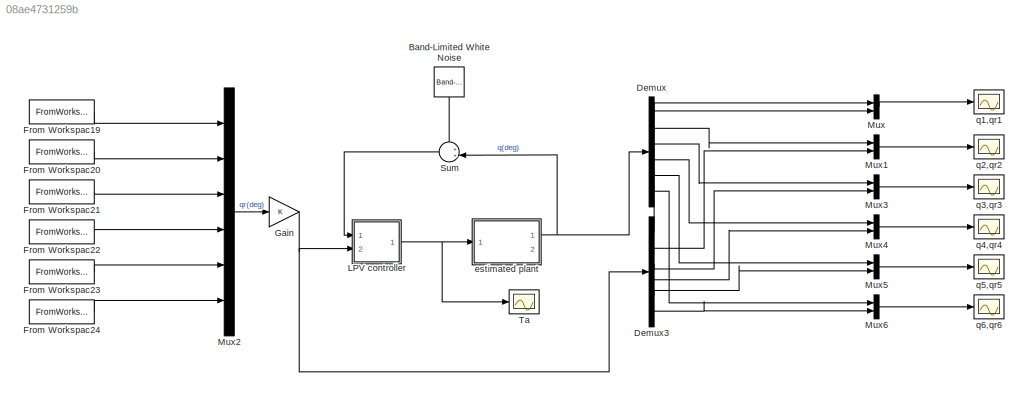
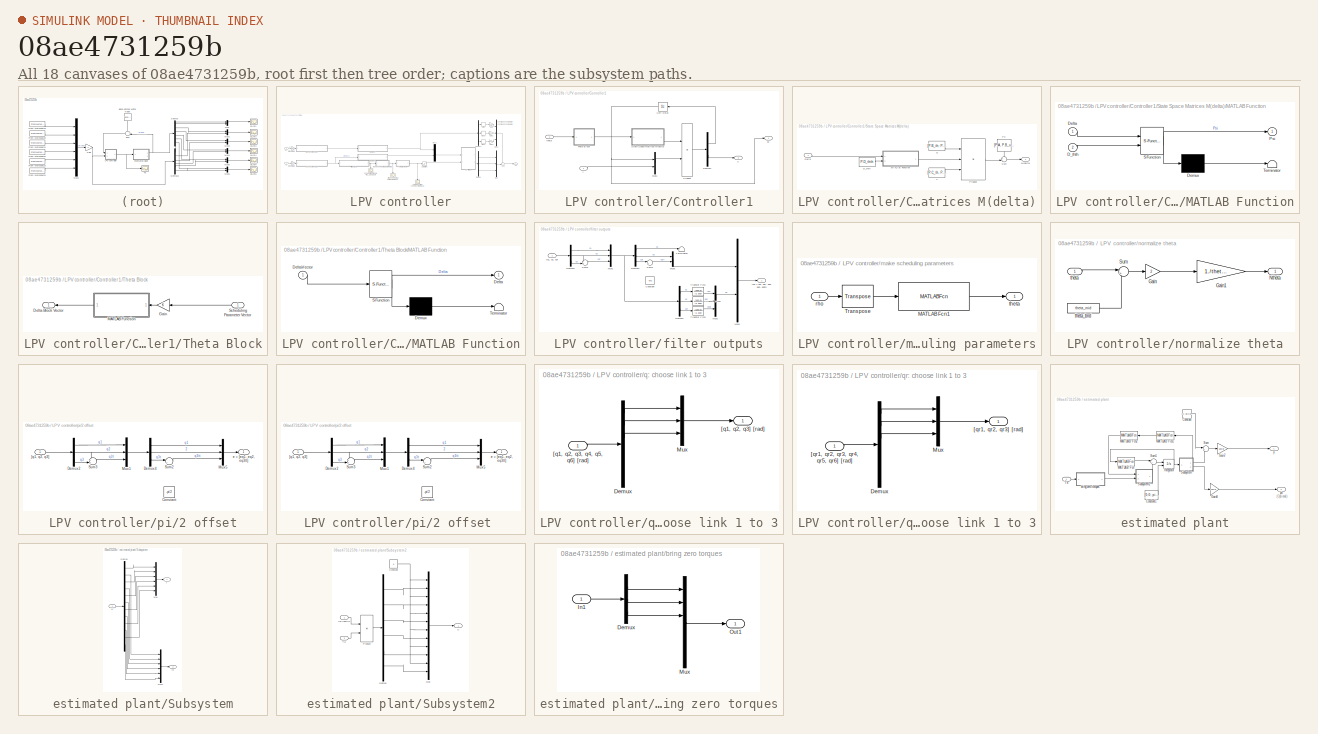
[diagram: thumbnail index - all 18 canvases of the model, root first then tree order]
MODEL slx_08ae4731259b
KIND model
CONFIG StopFcn = q1rms = rms(q1qr1.signals.values(:, 1) - q1qr1.signals.values(:, 2))\nq2rms = rms(q2qr2.signals.values(:, 1) - q2qr2.signals.values(:, 2))\nq3rms = rms(q3qr3.signals.values(:, 1) - q3qr3.signals.values(:, 2))
BLOCK [Reference] Band-Limited White Noise  REF=simulink/Sources/Band-Limited
White Noise
  Cov = [0.0000000001]
  Ports = [0, 1]
  SourceBlock = simulink/Sources/Band-Limited\nWhite Noise
  SourceType = Band-Limited White Noise.
  Ts = 0.001
  VectorParams1D = on
  seed = [23341]
BLOCK [Demux] Demux
  DisplayOption = bar
  Outputs = 6
  Ports = [1, 6]
BLOCK [Demux] Demux3
  DisplayOption = bar
  Outputs = 6
  Ports = [1, 6]
BLOCK [FromWorkspace] From Workspac19
  SampleTime = 0
  VariableName = [time qr(:,1)]
BLOCK [FromWorkspace] From Workspac20
  SampleTime = 0
  VariableName = [time qr(:,2)]
BLOCK [FromWorkspace] From Workspac21
  SampleTime = 0
  VariableName = [time qr(:,3)]
BLOCK [FromWorkspace] From Workspac22
  SampleTime = 0
  VariableName = [time qr(:,4)]
BLOCK [FromWorkspace] From Workspac23
  SampleTime = 0
  VariableName = [time qr(:,5)]
BLOCK [FromWorkspace] From Workspac24
  SampleTime = 0
  VariableName = [time qr(:,6)]
BLOCK [Gain] Gain
  OutDataTypeStr = Inherit: Inherit via internal rule
  ParamDataTypeStr = Inherit: Inherit via internal rule
  SaturateOnIntegerOverflow = off
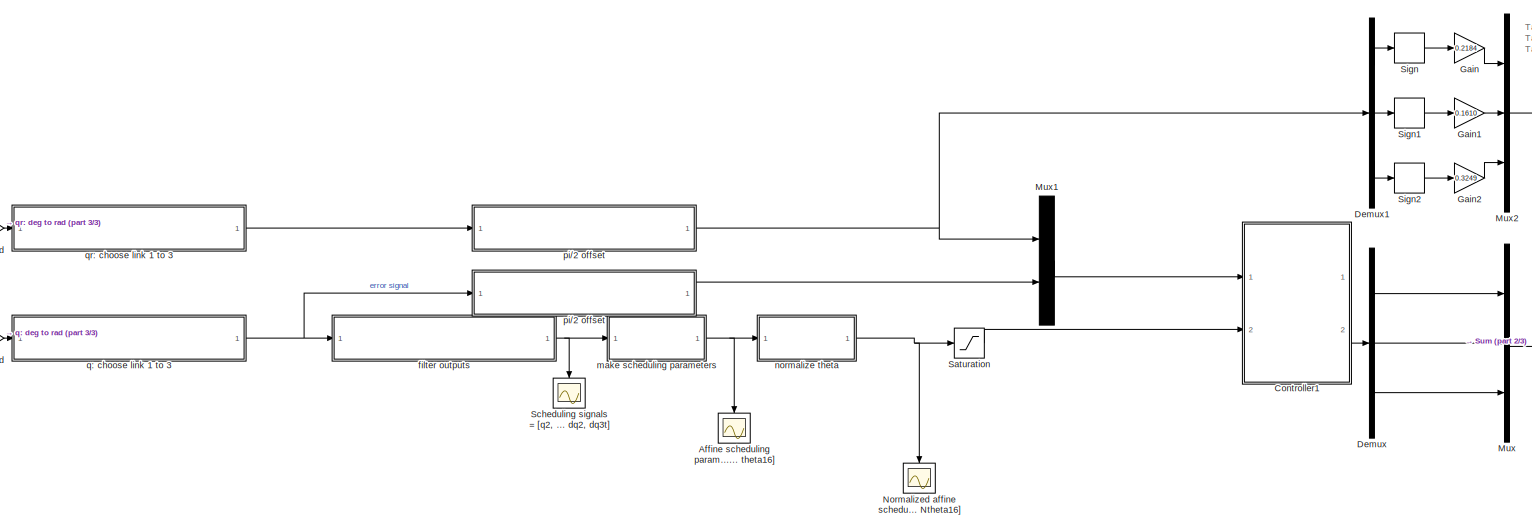
[diagram: LPV controller - part 1/3, most of the canvas]
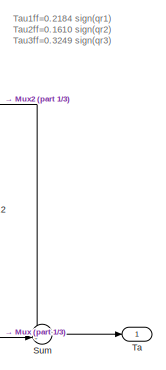
[diagram: LPV controller - part 2/3, middle right region]
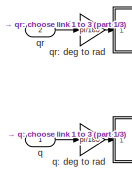
[diagram: LPV controller - part 3/3, middle left region]
BLOCK [SubSystem] LPV controller
  FunctionWithSeparateData = off
  MaskHideContents = off
  MinAlgLoopOccurrences = off
  Opaque = off
  Ports = [2, 1]
  PropExecContextOutsideSubsystem = off
  RTWSystemCode = Auto
  RequestExecContextInheritance = off
BLOCK [Scope] LPV controller/Affine scheduling parameters theta = [theta1 ... theta16]
  DataFormat = StructureWithTime
  Floating = off
  LegendLocations = 0.76558     0.55816     0.20472      0.3857
  LimitDataPoints = off
  NumInputPorts = 1
  Ports = [1]
  SampleTime = 0
  SaveName = ScopeData8
  ShowLegends = on
BLOCK [SubSystem] LPV controller/Controller1
  FunctionWithSeparateData = off
  MaskHideContents = off
  MinAlgLoopOccurrences = off
  Opaque = off
  Ports = [2, 2]
  PropExecContextOutsideSubsystem = off
  RTWSystemCode = Auto
  RequestExecContextInheritance = off
BLOCK [Demux] LPV controller/Controller1/Demux1
  DisplayOption = bar
  Outputs = [size(P.A, 1); size(P.C_y, 1)]
  Ports = [1, 2]
BLOCK [Mux] LPV controller/Controller1/Mux1
  DisplayOption = bar
  Inputs = 2
  Ports = [2, 1]
BLOCK [Product] LPV controller/Controller1/Product
  InputSameDT = off
  Multiplication = Matrix(*)
  OutDataTypeStr = Inherit: Inherit via internal rule
  Ports = [2, 1]
  SaturateOnIntegerOverflow = off
BLOCK [SubSystem] LPV controller/Controller1/State Space Matrices M(delta)
  FunctionWithSeparateData = off
  MaskHideContents = off
  MinAlgLoopOccurrences = off
  Opaque = off
  Ports = [1, 1]
  PropExecContextOutsideSubsystem = off
  RTWSystemCode = Auto
  RequestExecContextInheritance = off
BLOCK [Constant] LPV controller/Controller1/State Space Matrices M(delta)/D_thth
  Value = P.D_thth
BLOCK [Inport] LPV controller/Controller1/State Space Matrices M(delta)/Delta
  IconDisplay = Port number
BLOCK [Outport] LPV controller/Controller1/State Space Matrices M(delta)/M(delta)
  IconDisplay = Port number
BLOCK [SubSystem] LPV controller/Controller1/State Space Matrices M(delta)/MATLAB Function
  ErrorFcn = Stateflow.Translate.translate
  FunctionWithSeparateData = off
  MaskHideContents = off
  MinAlgLoopOccurrences = off
  Opaque = off
  PermitHierarchicalResolution = ExplicitOnly
  Ports = [2, 1]
  PropExecContextOutsideSubsystem = off
  RTWSystemCode = Auto
  RequestExecContextInheritance = off
  SFBlockType = MATLAB Function
  TreatAsAtomicUnit = on
BLOCK [Demux] LPV controller/Controller1/State Space Matrices M(delta)/MATLAB Function/ Demux 
  Outputs = 1
  Ports = [1, 1]
BLOCK [S-Function] LPV controller/Controller1/State Space Matrices M(delta)/MATLAB Function/ SFunction 
  EnableBusSupport = on
  FunctionName = sf_sfun
  PortCounts = [2 2]
  Ports = [2, 2]
  Tag = Stateflow S-Function Robot_model_LPV_2DOFcontrol_fullSchedulingOrder_3DOF 2
BLOCK [Terminator] LPV controller/Controller1/State Space Matrices M(delta)/MATLAB Function/ Terminator 
BLOCK [Inport] LPV controller/Controller1/State Space Matrices M(delta)/MATLAB Function/D_thth
  IconDisplay = Port number
  Port = 2
BLOCK [Inport] LPV controller/Controller1/State Space Matrices M(delta)/MATLAB Function/Delta
  IconDisplay = Port number
BLOCK [Outport] LPV controller/Controller1/State Space Matrices M(delta)/MATLAB Function/Psi
  IconDisplay = Port number
BLOCK [Constant] LPV controller/Controller1/State Space Matrices M(delta)/P0
  Value = [P.A, P.B_u; P.C_y, P.D_yu];
  VectorParams1D = off
BLOCK [Product] LPV controller/Controller1/State Space Matrices M(delta)/Product
  InputSameDT = off
  Inputs = 3
  Multiplication = Matrix(*)
  OutDataTypeStr = Inherit: Inherit via internal rule
  Ports = [3, 1]
  SaturateOnIntegerOverflow = off
BLOCK [Constant] LPV controller/Controller1/State Space Matrices M(delta)/Q
  Value = [P.B_th; P.D_yth]
BLOCK [Sum] LPV controller/Controller1/State Space Matrices M(delta)/Sum
  IconShape = round
  InputSameDT = off
  Inputs = ++|
  OutDataTypeStr = Inherit: Inherit via internal rule
  Ports = [2, 1]
  SaturateOnIntegerOverflow = off
BLOCK [Constant] LPV controller/Controller1/State Space Matrices M(delta)/V
  Value = [P.C_th, P.D_thu ]
  VectorParams1D = off
BLOCK [SubSystem] LPV controller/Controller1/Theta Block
  FunctionWithSeparateData = off
  MaskHideContents = off
  MinAlgLoopOccurrences = off
  Opaque = off
  Ports = [1, 1]
  PropExecContextOutsideSubsystem = off
  RTWSystemCode = Auto
  RequestExecContextInheritance = off
BLOCK [Outport] LPV controller/Controller1/Theta Block/Delta Block Vector
  IconDisplay = Port number
BLOCK [Gain] LPV controller/Controller1/Theta Block/Gain
  OutDataTypeStr = Inherit: Inherit via internal rule
  ParamDataTypeStr = Inherit: Inherit via internal rule
  SaturateOnIntegerOverflow = off
BLOCK [SubSystem] LPV controller/Controller1/Theta Block/MATLAB Function
  ErrorFcn = Stateflow.Translate.translate
  FunctionWithSeparateData = off
  MaskHideContents = off
  MinAlgLoopOccurrences = off
  Opaque = off
  PermitHierarchicalResolution = ExplicitOnly
  Ports = [1, 1]
  PropExecContextOutsideSubsystem = off
  RTWSystemCode = Auto
  RequestExecContextInheritance = off
  SFBlockType = MATLAB Function
  TreatAsAtomicUnit = on
BLOCK [Demux] LPV controller/Controller1/Theta Block/MATLAB Function/ Demux 
  Outputs = 1
  Ports = [1, 1]
BLOCK [S-Function] LPV controller/Controller1/Theta Block/MATLAB Function/ SFunction 
  EnableBusSupport = on
  FunctionName = sf_sfun
  PortCounts = [1 2]
  Ports = [1, 2]
  Tag = Stateflow S-Function Robot_model_LPV_2DOFcontrol_fullSchedulingOrder_3DOF 1
BLOCK [Terminator] LPV controller/Controller1/Theta Block/MATLAB Function/ Terminator 
BLOCK [Outport] LPV controller/Controller1/Theta Block/MATLAB Function/Delta
  IconDisplay = Port number
BLOCK [Inport] LPV controller/Controller1/Theta Block/MATLAB Function/DeltaVector
  IconDisplay = Port number
BLOCK [Inport] LPV controller/Controller1/Theta Block/Scheduling Parameter Vector
  IconDisplay = Port number
BLOCK [UnitDelay] LPV controller/Controller1/Unit Delay
  InputProcessing = Elements as channels (sample based)
  SampleTime = -1
BLOCK [Inport] LPV controller/Controller1/theta
  IconDisplay = Port number
  Port = 2
BLOCK [Outport] LPV controller/Controller1/u
  IconDisplay = Port number
  Port = 2
BLOCK [Outport] LPV controller/Controller1/xk
  IconDisplay = Port number
BLOCK [Inport] LPV controller/Controller1/y
  IconDisplay = Port number
BLOCK [Demux] LPV controller/Demux
  DisplayOption = bar
  Outputs = 3
  Ports = [1, 3]
BLOCK [Demux] LPV controller/Demux1
  DisplayOption = bar
  Outputs = 3
  Ports = [1, 3]
BLOCK [Gain] LPV controller/Gain
  Gain = 0.2184
  OutDataTypeStr = Inherit: Inherit via internal rule
  ParamDataTypeStr = Inherit: Inherit via internal rule
  SampleTime = 0.001
  SaturateOnIntegerOverflow = off
BLOCK [Gain] LPV controller/Gain1
  Gain = 0.1610
  OutDataTypeStr = Inherit: Inherit via internal rule
  ParamDataTypeStr = Inherit: Inherit via internal rule
  SampleTime = 0.001
  SaturateOnIntegerOverflow = off
BLOCK [Gain] LPV controller/Gain2
  Gain = 0.3249
  OutDataTypeStr = Inherit: Inherit via internal rule
  ParamDataTypeStr = Inherit: Inherit via internal rule
  SampleTime = 0.001
  SaturateOnIntegerOverflow = off
BLOCK [Mux] LPV controller/Mux
  DisplayOption = bar
  Inputs = 3
  Ports = [3, 1]
BLOCK [Mux] LPV controller/Mux1
  DisplayOption = bar
  Inputs = 2
  Ports = [2, 1]
BLOCK [Mux] LPV controller/Mux2
  DisplayOption = bar
  Inputs = 3
  Ports = [3, 1]
BLOCK [Scope] LPV controller/Normalized affine scheduling parameters Ntheta = [Ntheta1 ... Ntheta16]
  DataFormat = StructureWithTime
  Floating = off
  LimitDataPoints = off
  NumInputPorts = 1
  Ports = [1]
  SampleTime = 0
  SaveName = ScopeData9
  ShowLegends = off
  YMax = 1.25
  YMin = -1.75
BLOCK [Saturate] LPV controller/Saturation
  InputPortMap = u0
  LowerLimit = -1
  Ports = [1, 1]
  UpperLimit = 1
BLOCK [Scope] LPV controller/Scheduling signals = [q2, q3t, dq1, dq2, dq3t]
  DataFormat = StructureWithTime
  Floating = off
  LimitDataPoints = off
  NumInputPorts = 1
  Ports = [1]
  SampleTime = 0
  SaveName = ScopeData7
  ShowLegends = off
BLOCK [Signum] LPV controller/Sign
  SampleTime = 0.001
BLOCK [Signum] LPV controller/Sign1
  SampleTime = 0.001
BLOCK [Signum] LPV controller/Sign2
  SampleTime = 0.001
BLOCK [Sum] LPV controller/Sum
  IconShape = round
  InputSameDT = off
  Inputs = ++|
  OutDataTypeStr = Inherit: Inherit via internal rule
  Ports = [2, 1]
  SaturateOnIntegerOverflow = off
BLOCK [Outport] LPV controller/Ta
  IconDisplay = Port number
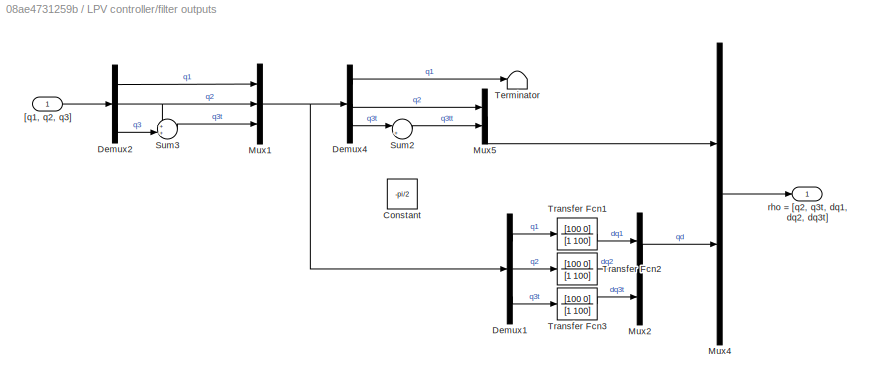
BLOCK [SubSystem] LPV controller/filter outputs
  FunctionWithSeparateData = off
  MaskHideContents = off
  MinAlgLoopOccurrences = off
  Opaque = off
  Ports = [1, 1]
  PropExecContextOutsideSubsystem = off
  RTWSystemCode = Auto
  RequestExecContextInheritance = off
BLOCK [Constant] LPV controller/filter outputs/Constant
  Value = -pi/2
BLOCK [Demux] LPV controller/filter outputs/Demux1
  DisplayOption = bar
  Outputs = 3
  Ports = [1, 3]
BLOCK [Demux] LPV controller/filter outputs/Demux2
  DisplayOption = bar
  Outputs = 3
  Ports = [1, 3]
BLOCK [Demux] LPV controller/filter outputs/Demux4
  DisplayOption = bar
  Outputs = 3
  Ports = [1, 3]
BLOCK [Mux] LPV controller/filter outputs/Mux1
  DisplayOption = bar
  Inputs = 3
  Ports = [3, 1]
BLOCK [Mux] LPV controller/filter outputs/Mux2
  DisplayOption = bar
  Inputs = 3
  Ports = [3, 1]
BLOCK [Mux] LPV controller/filter outputs/Mux4
  DisplayOption = bar
  Inputs = 2
  Ports = [2, 1]
BLOCK [Mux] LPV controller/filter outputs/Mux5
  DisplayOption = bar
  Inputs = 2
  Ports = [2, 1]
BLOCK [Sum] LPV controller/filter outputs/Sum2
  IconShape = round
  InputSameDT = off
  Inputs = |++
  OutDataTypeStr = Inherit: Inherit via internal rule
  Ports = [2, 1]
  SaturateOnIntegerOverflow = off
BLOCK [Sum] LPV controller/filter outputs/Sum3
  IconShape = round
  InputSameDT = off
  Inputs = ++|
  OutDataTypeStr = Inherit: Inherit via internal rule
  Ports = [2, 1]
  SaturateOnIntegerOverflow = off
BLOCK [Terminator] LPV controller/filter outputs/Terminator
BLOCK [TransferFcn] LPV controller/filter outputs/Transfer Fcn1
  Denominator = [1 100]
  Numerator = [100 0]
BLOCK [TransferFcn] LPV controller/filter outputs/Transfer Fcn2
  Denominator = [1 100]
  Numerator = [100 0]
BLOCK [TransferFcn] LPV controller/filter outputs/Transfer Fcn3
  Denominator = [1 100]
  Numerator = [100 0]
BLOCK [Inport] LPV controller/filter outputs/[q1, q2, q3]
  IconDisplay = Port number
BLOCK [Outport] LPV controller/filter outputs/rho = [q2, q3t, dq1, dq2, dq3t]
  IconDisplay = Port number
BLOCK [SubSystem] LPV controller/make scheduling parameters
  FunctionWithSeparateData = off
  MaskHideContents = off
  MinAlgLoopOccurrences = off
  Opaque = off
  Ports = [1, 1]
  PropExecContextOutsideSubsystem = off
  RTWSystemCode = Auto
  RequestExecContextInheritance = off
BLOCK [MATLABFcn] LPV controller/make scheduling parameters/MATLAB Fcn1
  MATLABFcn = robot3DOFaffineLPVparams(u)
  Output1D = off
  Ports = [1, 1]
BLOCK [Reference] LPV controller/make scheduling parameters/Transpose  REF=dspmtrx3/Transpose
  Hermitian = off
  Ports = [1, 1]
  SourceBlock = dspmtrx3/Transpose
  SourceType = Transpose
  overflowFlag = off
BLOCK [Inport] LPV controller/make scheduling parameters/rho
  IconDisplay = Port number
BLOCK [Outport] LPV controller/make scheduling parameters/theta
  IconDisplay = Port number
BLOCK [SubSystem] LPV controller/normalize theta
  FunctionWithSeparateData = off
  MaskHideContents = off
  MinAlgLoopOccurrences = off
  Opaque = off
  Ports = [1, 1]
  PropExecContextOutsideSubsystem = off
  RTWSystemCode = Auto
  RequestExecContextInheritance = off
BLOCK [Gain] LPV controller/normalize theta/Gain
  Gain = 2
  OutDataTypeStr = Inherit: Inherit via internal rule
  ParamDataTypeStr = Inherit: Inherit via internal rule
  SaturateOnIntegerOverflow = off
BLOCK [Gain] LPV controller/normalize theta/Gain1
  Gain = 1./theta_range
  OutDataTypeStr = Inherit: Inherit via internal rule
  ParamDataTypeStr = Inherit: Inherit via internal rule
  SaturateOnIntegerOverflow = off
BLOCK [Outport] LPV controller/normalize theta/Ntheta
  IconDisplay = Port number
BLOCK [Sum] LPV controller/normalize theta/Sum
  IconShape = round
  InputSameDT = off
  Inputs = |+-
  OutDataTypeStr = Inherit: Inherit via internal rule
  Ports = [2, 1]
  SaturateOnIntegerOverflow = off
BLOCK [Inport] LPV controller/normalize theta/theta
  IconDisplay = Port number
BLOCK [Constant] LPV controller/normalize theta/theta_bnd
  Value = theta_mid
BLOCK [SubSystem] LPV controller/pi//2 offset
  FunctionWithSeparateData = off
  MaskHideContents = off
  MinAlgLoopOccurrences = off
  Opaque = off
  Ports = [1, 1]
  PropExecContextOutsideSubsystem = off
  RTWSystemCode = Auto
  RequestExecContextInheritance = off
BLOCK [SubSystem] LPV controller/pi//2 offset 
  FunctionWithSeparateData = off
  MaskHideContents = off
  MinAlgLoopOccurrences = off
  Opaque = off
  Ports = [1, 1]
  PropExecContextOutsideSubsystem = off
  RTWSystemCode = Auto
  RequestExecContextInheritance = off
BLOCK [Constant] LPV controller/pi//2 offset /Constant
  Value = -pi/2
BLOCK [Demux] LPV controller/pi//2 offset /Demux2
  DisplayOption = bar
  Outputs = 3
  Ports = [1, 3]
BLOCK [Demux] LPV controller/pi//2 offset /Demux4
  DisplayOption = bar
  Outputs = 3
  Ports = [1, 3]
BLOCK [Mux] LPV controller/pi//2 offset /Mux1
  DisplayOption = bar
  Inputs = 3
  Ports = [3, 1]
BLOCK [Mux] LPV controller/pi//2 offset /Mux5
  DisplayOption = bar
  Inputs = 3
  Ports = [3, 1]
BLOCK [Sum] LPV controller/pi//2 offset /Sum2
  IconShape = round
  InputSameDT = off
  Inputs = |++
  OutDataTypeStr = Inherit: Inherit via internal rule
  Ports = [2, 1]
  SaturateOnIntegerOverflow = off
BLOCK [Sum] LPV controller/pi//2 offset /Sum3
  IconShape = round
  InputSameDT = off
  Inputs = ++|
  OutDataTypeStr = Inherit: Inherit via internal rule
  Ports = [2, 1]
  SaturateOnIntegerOverflow = off
BLOCK [Inport] LPV controller/pi//2 offset /[q1, q2, q3]
  IconDisplay = Port number
BLOCK [Outport] LPV controller/pi//2 offset /e = [eq1, eq2, eq3tt]
  IconDisplay = Port number
BLOCK [Constant] LPV controller/pi//2 offset/Constant
  Value = -pi/2
BLOCK [Demux] LPV controller/pi//2 offset/Demux2
  DisplayOption = bar
  Outputs = 3
  Ports = [1, 3]
BLOCK [Demux] LPV controller/pi//2 offset/Demux4
  DisplayOption = bar
  Outputs = 3
  Ports = [1, 3]
BLOCK [Mux] LPV controller/pi//2 offset/Mux1
  DisplayOption = bar
  Inputs = 3
  Ports = [3, 1]
BLOCK [Mux] LPV controller/pi//2 offset/Mux5
  DisplayOption = bar
  Inputs = 3
  Ports = [3, 1]
BLOCK [Sum] LPV controller/pi//2 offset/Sum2
  IconShape = round
  InputSameDT = off
  Inputs = |++
  OutDataTypeStr = Inherit: Inherit via internal rule
  Ports = [2, 1]
  SaturateOnIntegerOverflow = off
BLOCK [Sum] LPV controller/pi//2 offset/Sum3
  IconShape = round
  InputSameDT = off
  Inputs = ++|
  OutDataTypeStr = Inherit: Inherit via internal rule
  Ports = [2, 1]
  SaturateOnIntegerOverflow = off
BLOCK [Inport] LPV controller/pi//2 offset/[q1, q2, q3]
  IconDisplay = Port number
BLOCK [Outport] LPV controller/pi//2 offset/e = [eq1, eq2, eq3tt]
  IconDisplay = Port number
BLOCK [Inport] LPV controller/q
  IconDisplay = Port number
BLOCK [SubSystem] LPV controller/q: choose link 1 to 3
  FunctionWithSeparateData = off
  MaskHideContents = off
  MinAlgLoopOccurrences = off
  Opaque = off
  Ports = [1, 1]
  PropExecContextOutsideSubsystem = off
  RTWSystemCode = Auto
  RequestExecContextInheritance = off
BLOCK [Demux] LPV controller/q: choose link 1 to 3/Demux
  DisplayOption = bar
  Outputs = 6
  Ports = [1, 6]
BLOCK [Mux] LPV controller/q: choose link 1 to 3/Mux
  DisplayOption = bar
  Inputs = 3
  Ports = [3, 1]
BLOCK [Inport] LPV controller/q: choose link 1 to 3/[q1, q2, q3, q4, q5, q6] [rad]
  IconDisplay = Port number
BLOCK [Outport] LPV controller/q: choose link 1 to 3/[q1, q2, q3] [rad]
  IconDisplay = Port number
BLOCK [Gain] LPV controller/q: deg to rad
  Gain = pi/180
  OutDataTypeStr = Inherit: Inherit via internal rule
  ParamDataTypeStr = Inherit: Inherit via internal rule
  SaturateOnIntegerOverflow = off
BLOCK [Inport] LPV controller/qr
  IconDisplay = Port number
  Port = 2
BLOCK [SubSystem] LPV controller/qr: choose link 1 to 3
  FunctionWithSeparateData = off
  MaskHideContents = off
  MinAlgLoopOccurrences = off
  Opaque = off
  Ports = [1, 1]
  PropExecContextOutsideSubsystem = off
  RTWSystemCode = Auto
  RequestExecContextInheritance = off
BLOCK [Demux] LPV controller/qr: choose link 1 to 3/Demux
  DisplayOption = bar
  Outputs = 6
  Ports = [1, 6]
BLOCK [Mux] LPV controller/qr: choose link 1 to 3/Mux
  DisplayOption = bar
  Inputs = 3
  Ports = [3, 1]
BLOCK [Inport] LPV controller/qr: choose link 1 to 3/[qr1, qr2, qr3, qr4, qr5, qr6] [rad]
  IconDisplay = Port number
BLOCK [Outport] LPV controller/qr: choose link 1 to 3/[qr1, qr2, qr3] [rad]
  IconDisplay = Port number
BLOCK [Gain] LPV controller/qr: deg to rad
  Gain = pi/180
  OutDataTypeStr = Inherit: Inherit via internal rule
  ParamDataTypeStr = Inherit: Inherit via internal rule
  SaturateOnIntegerOverflow = off
BLOCK [Mux] Mux
  DisplayOption = bar
  Inputs = 2
  Ports = [2, 1]
BLOCK [Mux] Mux1
  DisplayOption = bar
  Inputs = 2
  Ports = [2, 1]
BLOCK [Mux] Mux2
  DisplayOption = bar
  Inputs = 6
  Ports = [6, 1]
BLOCK [Mux] Mux3
  DisplayOption = bar
  Inputs = 2
  Ports = [2, 1]
BLOCK [Mux] Mux4
  DisplayOption = bar
  Inputs = 2
  Ports = [2, 1]
BLOCK [Mux] Mux5
  DisplayOption = bar
  Inputs = 2
  Ports = [2, 1]
BLOCK [Mux] Mux6
  DisplayOption = bar
  Inputs = 2
  Ports = [2, 1]
BLOCK [Sum] Sum
  IconShape = round
  InputSameDT = off
  Inputs = ++|
  OutDataTypeStr = Inherit: Inherit via internal rule
  Ports = [2, 1]
  SaturateOnIntegerOverflow = off
BLOCK [Scope] Ta
  DataFormat = StructureWithTime
  Floating = off
  NumInputPorts = 1
  Ports = [1]
  SampleTime = 0
  SaveName = ScopeData6
  ShowLegends = off
  YMax = 2.25
  YMin = -1.5
BLOCK [SubSystem] estimated plant
  FunctionWithSeparateData = off
  MaskHideContents = off
  MinAlgLoopOccurrences = off
  Opaque = off
  Ports = [1, 2]
  PropExecContextOutsideSubsystem = off
  RTWSystemCode = Auto
  RequestExecContextInheritance = off
BLOCK [Constant] estimated plant/Constant
  Value = [0;-pi/2;pi;0;0;0]
BLOCK [Constant] estimated plant/Constant1
  AttributesFormatString = initial states, ready position
  Value = [0;0;    pi/2;0;    -pi;0;    0;0;    0;0;    0;0]
BLOCK [Gain] estimated plant/Gain7
  Gain = 180/pi
  OutDataTypeStr = Inherit: Inherit via internal rule
  ParamDataTypeStr = Inherit: Inherit via internal rule
  SaturateOnIntegerOverflow = off
BLOCK [Gain] estimated plant/Gain8
  Gain = 180/pi
  OutDataTypeStr = Inherit: Inherit via internal rule
  ParamDataTypeStr = Inherit: Inherit via internal rule
  SaturateOnIntegerOverflow = off
BLOCK [Integrator] estimated plant/Integrator
  InitialConditionSource = external
  Ports = [2, 1]
BLOCK [MATLABFcn] estimated plant/MATLAB Fcn
  MATLABFcn = Xdsim(u)
  Ports = [1, 1]
BLOCK [MATLABFcn] estimated plant/MATLAB Fcn1
  MATLABFcn = inert(u)
  Output1D = off
  Ports = [1, 1]
BLOCK [MATLABFcn] estimated plant/MATLAB Fcn2
  MATLABFcn = inv(u)
  Output1D = off
  Ports = [1, 1]
BLOCK [SubSystem] estimated plant/Subsystem
  FunctionWithSeparateData = off
  MaskHideContents = off
  MinAlgLoopOccurrences = off
  Opaque = off
  Ports = [1, 2]
  PropExecContextOutsideSubsystem = off
  RTWSystemCode = Auto
  RequestExecContextInheritance = off
BLOCK [Demux] estimated plant/Subsystem/Demux
  DisplayOption = bar
  Outputs = 12
  Ports = [1, 12]
BLOCK [Mux] estimated plant/Subsystem/Mux
  DisplayOption = bar
  Inputs = 6
  Ports = [6, 1]
BLOCK [Mux] estimated plant/Subsystem/Mux1
  DisplayOption = bar
  Inputs = 6
  Ports = [6, 1]
BLOCK [Inport] estimated plant/Subsystem/X
  IconDisplay = Port number
BLOCK [Outport] estimated plant/Subsystem/y
  IconDisplay = Port number
BLOCK [Outport] estimated plant/Subsystem/yd
  IconDisplay = Port number
  Port = 2
BLOCK [SubSystem] estimated plant/Subsystem2
  FunctionWithSeparateData = off
  MaskHideContents = off
  MinAlgLoopOccurrences = off
  Opaque = off
  Ports = [2, 1]
  PropExecContextOutsideSubsystem = off
  RTWSystemCode = Auto
  RequestExecContextInheritance = off
BLOCK [Constant] estimated plant/Subsystem2/Constant
  Value = 0
BLOCK [Demux] estimated plant/Subsystem2/Demux
  DisplayOption = bar
  Outputs = 6
  Ports = [1, 6]
BLOCK [Mux] estimated plant/Subsystem2/Mux
  DisplayOption = bar
  Inputs = 12
  Ports = [12, 1]
BLOCK [Product] estimated plant/Subsystem2/Product
  InputSameDT = off
  Multiplication = Matrix(*)
  OutDataTypeStr = Inherit: Inherit via internal rule
  Ports = [2, 1]
  SaturateOnIntegerOverflow = off
BLOCK [Inport] estimated plant/Subsystem2/Ta
  IconDisplay = Port number
  Port = 2
BLOCK [Outport] estimated plant/Subsystem2/U 
  IconDisplay = Port number
BLOCK [Inport] estimated plant/Subsystem2/inv inertia
  IconDisplay = Port number
BLOCK [Sum] estimated plant/Sum
  IconShape = round
  InputSameDT = off
  Inputs = |++
  OutDataTypeStr = Inherit: Inherit via internal rule
  Ports = [2, 1]
  SaturateOnIntegerOverflow = off
BLOCK [Sum] estimated plant/Sum1
  IconShape = round
  InputSameDT = off
  Inputs = |++
  OutDataTypeStr = Inherit: Inherit via internal rule
  Ports = [2, 1]
  SaturateOnIntegerOverflow = off
BLOCK [Inport] estimated plant/Ta
  IconDisplay = Port number
BLOCK [SubSystem] estimated plant/bring zero torques
  FunctionWithSeparateData = off
  MaskHideContents = off
  MinAlgLoopOccurrences = off
  Opaque = off
  Ports = [1, 1]
  PropExecContextOutsideSubsystem = off
  RTWSystemCode = Auto
  RequestExecContextInheritance = off
BLOCK [Demux] estimated plant/bring zero torques/Demux
  DisplayOption = bar
  Outputs = 3
  Ports = [1, 3]
BLOCK [Inport] estimated plant/bring zero torques/In1
  IconDisplay = Port number
BLOCK [Mux] estimated plant/bring zero torques/Mux
  DisplayOption = bar
  Inputs = 6
  Ports = [6, 1]
BLOCK [Outport] estimated plant/bring zero torques/Out1
  IconDisplay = Port number
BLOCK [Outport] estimated plant/y
  IconDisplay = Port number
BLOCK [Outport] estimated plant/yd
  IconDisplay = Port number
  Port = 2
BLOCK [Scope] q1,qr1
  DataFormat = StructureWithTime
  Floating = off
  LimitDataPoints = off
  NumInputPorts = 1
  Ports = [1]
  SampleTime = 0
  SaveName = q1qr1
  SaveToWorkspace = on
  ShowLegends = off
  YMax = -19
  YMin = -33
BLOCK [Scope] q2,qr2
  DataFormat = StructureWithTime
  Floating = off
  LimitDataPoints = off
  NumInputPorts = 1
  Ports = [1]
  SampleTime = 0
  SaveName = q2qr2
  SaveToWorkspace = on
  ShowLegends = off
  YMax = 0
  YMin = -40
BLOCK [Scope] q3,qr3
  DataFormat = StructureWithTime
  Floating = off
  LimitDataPoints = off
  NumInputPorts = 1
  Ports = [1]
  SampleTime = 0
  SaveName = q3qr3
  SaveToWorkspace = on
  ShowLegends = off
  YMax = 10
  YMin = 2
BLOCK [Scope] q4,qr4
  DataFormat = StructureWithTime
  Floating = off
  NumInputPorts = 1
  Ports = [1]
  SampleTime = 0
  SaveName = ScopeData3
  ShowLegends = off
  YMax = 375
  YMin = 0
BLOCK [Scope] q5,qr5
  DataFormat = StructureWithTime
  Floating = off
  NumInputPorts = 1
  Ports = [1]
  SampleTime = 0
  SaveName = ScopeData4
  ShowLegends = off
  YMax = 50
  YMin = -50
BLOCK [Scope] q6,qr6
  DataFormat = StructureWithTime
  Floating = off
  NumInputPorts = 1
  Ports = [1]
  SampleTime = 0
  SaveName = ScopeData5
  ShowLegends = off
  YMax = 45
  YMin = -60
ANNOTATION LPV controller: Tau1ff=0.2184 sign(qr1) Tau2ff=0.1610 sign(qr2) Tau3ff=0.3249 sign(qr3)
ANNOTATION estimated plant: (Optional)
LINE Band-Limited White Noise:1 -> Sum:1
LINE Demux3:1 -> Mux:2
LINE Demux3:2 -> Mux1:2
LINE Demux3:3 -> Mux3:2
LINE Demux3:4 -> Mux4:2
LINE Demux3:5 -> Mux5:2
LINE Demux3:6 -> Mux6:2
LINE Demux:1 -> Mux:1
LINE Demux:2 -> Mux1:1
LINE Demux:3 -> Mux3:1
LINE Demux:4 -> Mux4:1
LINE Demux:5 -> Mux5:1
LINE Demux:6 -> Mux6:1
LINE From Workspac19:1 -> Mux2:1
LINE From Workspac20:1 -> Mux2:2
LINE From Workspac21:1 -> Mux2:3
LINE From Workspac22:1 -> Mux2:4
LINE From Workspac23:1 -> Mux2:5
LINE From Workspac24:1 -> Mux2:6
NET Gain:1 -> Demux3:1, LPV controller:2
LINE LPV controller/Controller1/Demux1:1 -> LPV controller/Controller1/Unit Delay:1
LINE LPV controller/Controller1/Demux1:2 -> LPV controller/Controller1/u:1
LINE LPV controller/Controller1/Mux1:1 -> LPV controller/Controller1/Product:2
LINE LPV controller/Controller1/Product:1 -> LPV controller/Controller1/Demux1:1
LINE LPV controller/Controller1/State Space Matrices M(delta)/D_thth:1 -> LPV controller/Controller1/State Space Matrices M(delta)/MATLAB Function:2
LINE LPV controller/Controller1/State Space Matrices M(delta)/Delta:1 -> LPV controller/Controller1/State Space Matrices M(delta)/MATLAB Function:1
LINE LPV controller/Controller1/State Space Matrices M(delta)/MATLAB Function:1 -> LPV controller/Controller1/State Space Matrices M(delta)/Product:2
LINE LPV controller/Controller1/State Space Matrices M(delta)/P0:1 -> LPV controller/Controller1/State Space Matrices M(delta)/Sum:1
LINE LPV controller/Controller1/State Space Matrices M(delta)/Product:1 -> LPV controller/Controller1/State Space Matrices M(delta)/Sum:2
LINE LPV controller/Controller1/State Space Matrices M(delta)/Q:1 -> LPV controller/Controller1/State Space Matrices M(delta)/Product:1
LINE LPV controller/Controller1/State Space Matrices M(delta)/Sum:1 -> LPV controller/Controller1/State Space Matrices M(delta)/M(delta):1
LINE LPV controller/Controller1/State Space Matrices M(delta)/V:1 -> LPV controller/Controller1/State Space Matrices M(delta)/Product:3
LINE LPV controller/Controller1/State Space Matrices M(delta):1 -> LPV controller/Controller1/Product:1
LINE LPV controller/Controller1/Theta Block/Gain:1 -> LPV controller/Controller1/Theta Block/MATLAB Function:1
LINE LPV controller/Controller1/Theta Block/MATLAB Function:1 -> LPV controller/Controller1/Theta Block/Delta Block Vector:1
LINE LPV controller/Controller1/Theta Block/Scheduling Parameter Vector:1 -> LPV controller/Controller1/Theta Block/Gain:1
LINE LPV controller/Controller1/Theta Block:1 -> LPV controller/Controller1/State Space Matrices M(delta):1
NET LPV controller/Controller1/Unit Delay:1 -> LPV controller/Controller1/Mux1:1, LPV controller/Controller1/xk:1
LINE LPV controller/Controller1/theta:1 -> LPV controller/Controller1/Theta Block:1
LINE LPV controller/Controller1/y:1 -> LPV controller/Controller1/Mux1:2
LINE LPV controller/Controller1:2 -> LPV controller/Demux:1
LINE LPV controller/Demux1:1 -> LPV controller/Sign:1
LINE LPV controller/Demux1:2 -> LPV controller/Sign1:1
LINE LPV controller/Demux1:3 -> LPV controller/Sign2:1
LINE LPV controller/Demux:1 -> LPV controller/Mux:1
LINE LPV controller/Demux:2 -> LPV controller/Mux:2
LINE LPV controller/Demux:3 -> LPV controller/Mux:3
LINE LPV controller/Gain1:1 -> LPV controller/Mux2:2
LINE LPV controller/Gain2:1 -> LPV controller/Mux2:3
LINE LPV controller/Gain:1 -> LPV controller/Mux2:1
LINE LPV controller/Mux1:1 -> LPV controller/Controller1:1
LINE LPV controller/Mux2:1 -> LPV controller/Sum:1
LINE LPV controller/Mux:1 -> LPV controller/Sum:2
LINE LPV controller/Saturation:1 -> LPV controller/Controller1:2
LINE LPV controller/Sign1:1 -> LPV controller/Gain1:1
LINE LPV controller/Sign2:1 -> LPV controller/Gain2:1
LINE LPV controller/Sign:1 -> LPV controller/Gain:1
LINE LPV controller/Sum:1 -> LPV controller/Ta:1
LINE LPV controller/filter outputs/Demux1:1 -> LPV controller/filter outputs/Transfer Fcn1:1
LINE LPV controller/filter outputs/Demux1:2 -> LPV controller/filter outputs/Transfer Fcn2:1
LINE LPV controller/filter outputs/Demux1:3 -> LPV controller/filter outputs/Transfer Fcn3:1
LINE LPV controller/filter outputs/Demux2:1 -> LPV controller/filter outputs/Mux1:1
NET LPV controller/filter outputs/Demux2:2 -> LPV controller/filter outputs/Mux1:2, LPV controller/filter outputs/Sum3:1
LINE LPV controller/filter outputs/Demux2:3 -> LPV controller/filter outputs/Sum3:2
LINE LPV controller/filter outputs/Demux4:1 -> LPV controller/filter outputs/Terminator:1
LINE LPV controller/filter outputs/Demux4:2 -> LPV controller/filter outputs/Mux5:1
LINE LPV controller/filter outputs/Demux4:3 -> LPV controller/filter outputs/Sum2:1
NET LPV controller/filter outputs/Mux1:1 -> LPV controller/filter outputs/Demux1:1, LPV controller/filter outputs/Demux4:1
LINE LPV controller/filter outputs/Mux2:1 -> LPV controller/filter outputs/Mux4:2
LINE LPV controller/filter outputs/Mux4:1 -> LPV controller/filter outputs/rho = [q2, q3t, dq1, dq2, dq3t]:1
LINE LPV controller/filter outputs/Mux5:1 -> LPV controller/filter outputs/Mux4:1
LINE LPV controller/filter outputs/Sum2:1 -> LPV controller/filter outputs/Mux5:2
LINE LPV controller/filter outputs/Sum3:1 -> LPV controller/filter outputs/Mux1:3
LINE LPV controller/filter outputs/Transfer Fcn1:1 -> LPV controller/filter outputs/Mux2:1
LINE LPV controller/filter outputs/Transfer Fcn2:1 -> LPV controller/filter outputs/Mux2:2
LINE LPV controller/filter outputs/Transfer Fcn3:1 -> LPV controller/filter outputs/Mux2:3
LINE LPV controller/filter outputs/[q1, q2, q3]:1 -> LPV controller/filter outputs/Demux2:1
NET LPV controller/filter outputs:1 -> LPV controller/Scheduling signals = [q2, q3t, dq1, dq2, dq3t]:1, LPV controller/make scheduling parameters:1
LINE LPV controller/make scheduling parameters/MATLAB Fcn1:1 -> LPV controller/make scheduling parameters/theta:1
LINE LPV controller/make scheduling parameters/Transpose:1 -> LPV controller/make scheduling parameters/MATLAB Fcn1:1
LINE LPV controller/make scheduling parameters/rho:1 -> LPV controller/make scheduling parameters/Transpose:1
NET LPV controller/make scheduling parameters:1 -> LPV controller/Affine scheduling parameters theta = [theta1 ... theta16]:1, LPV controller/normalize theta:1
LINE LPV controller/normalize theta/Gain1:1 -> LPV controller/normalize theta/Ntheta:1
LINE LPV controller/normalize theta/Gain:1 -> LPV controller/normalize theta/Gain1:1
LINE LPV controller/normalize theta/Sum:1 -> LPV controller/normalize theta/Gain:1
LINE LPV controller/normalize theta/theta:1 -> LPV controller/normalize theta/Sum:1
LINE LPV controller/normalize theta/theta_bnd:1 -> LPV controller/normalize theta/Sum:2
NET LPV controller/normalize theta:1 -> LPV controller/Normalized affine scheduling parameters Ntheta = [Ntheta1 ... Ntheta16]:1, LPV controller/Saturation:1
LINE LPV controller/pi//2 offset /Demux2:1 -> LPV controller/pi//2 offset /Mux1:1
NET LPV controller/pi//2 offset /Demux2:2 -> LPV controller/pi//2 offset /Mux1:2, LPV controller/pi//2 offset /Sum3:1
LINE LPV controller/pi//2 offset /Demux2:3 -> LPV controller/pi//2 offset /Sum3:2
LINE LPV controller/pi//2 offset /Demux4:1 -> LPV controller/pi//2 offset /Mux5:1
LINE LPV controller/pi//2 offset /Demux4:2 -> LPV controller/pi//2 offset /Mux5:2
LINE LPV controller/pi//2 offset /Demux4:3 -> LPV controller/pi//2 offset /Sum2:1
LINE LPV controller/pi//2 offset /Mux1:1 -> LPV controller/pi//2 offset /Demux4:1
LINE LPV controller/pi//2 offset /Mux5:1 -> LPV controller/pi//2 offset /e = [eq1, eq2, eq3tt]:1
LINE LPV controller/pi//2 offset /Sum2:1 -> LPV controller/pi//2 offset /Mux5:3
LINE LPV controller/pi//2 offset /Sum3:1 -> LPV controller/pi//2 offset /Mux1:3
LINE LPV controller/pi//2 offset /[q1, q2, q3]:1 -> LPV controller/pi//2 offset /Demux2:1
NET LPV controller/pi//2 offset :1 -> LPV controller/Demux1:1, LPV controller/Mux1:1
LINE LPV controller/pi//2 offset/Demux2:1 -> LPV controller/pi//2 offset/Mux1:1
NET LPV controller/pi//2 offset/Demux2:2 -> LPV controller/pi//2 offset/Mux1:2, LPV controller/pi//2 offset/Sum3:1
LINE LPV controller/pi//2 offset/Demux2:3 -> LPV controller/pi//2 offset/Sum3:2
LINE LPV controller/pi//2 offset/Demux4:1 -> LPV controller/pi//2 offset/Mux5:1
LINE LPV controller/pi//2 offset/Demux4:2 -> LPV controller/pi//2 offset/Mux5:2
LINE LPV controller/pi//2 offset/Demux4:3 -> LPV controller/pi//2 offset/Sum2:1
LINE LPV controller/pi//2 offset/Mux1:1 -> LPV controller/pi//2 offset/Demux4:1
LINE LPV controller/pi//2 offset/Mux5:1 -> LPV controller/pi//2 offset/e = [eq1, eq2, eq3tt]:1
LINE LPV controller/pi//2 offset/Sum2:1 -> LPV controller/pi//2 offset/Mux5:3
LINE LPV controller/pi//2 offset/Sum3:1 -> LPV controller/pi//2 offset/Mux1:3
LINE LPV controller/pi//2 offset/[q1, q2, q3]:1 -> LPV controller/pi//2 offset/Demux2:1
LINE LPV controller/pi//2 offset:1 -> LPV controller/Mux1:2
LINE LPV controller/q: choose link 1 to 3/Demux:1 -> LPV controller/q: choose link 1 to 3/Mux:1
LINE LPV controller/q: choose link 1 to 3/Demux:2 -> LPV controller/q: choose link 1 to 3/Mux:2
LINE LPV controller/q: choose link 1 to 3/Demux:3 -> LPV controller/q: choose link 1 to 3/Mux:3
LINE LPV controller/q: choose link 1 to 3/Mux:1 -> LPV controller/q: choose link 1 to 3/[q1, q2, q3] [rad]:1
LINE LPV controller/q: choose link 1 to 3/[q1, q2, q3, q4, q5, q6] [rad]:1 -> LPV controller/q: choose link 1 to 3/Demux:1
NET LPV controller/q: choose link 1 to 3:1 -> LPV controller/filter outputs:1, LPV controller/pi//2 offset:1
LINE LPV controller/q: deg to rad:1 -> LPV controller/q: choose link 1 to 3:1
LINE LPV controller/q:1 -> LPV controller/q: deg to rad:1
LINE LPV controller/qr: choose link 1 to 3/Demux:1 -> LPV controller/qr: choose link 1 to 3/Mux:1
LINE LPV controller/qr: choose link 1 to 3/Demux:2 -> LPV controller/qr: choose link 1 to 3/Mux:2
LINE LPV controller/qr: choose link 1 to 3/Demux:3 -> LPV controller/qr: choose link 1 to 3/Mux:3
LINE LPV controller/qr: choose link 1 to 3/Mux:1 -> LPV controller/qr: choose link 1 to 3/[qr1, qr2, qr3] [rad]:1
LINE LPV controller/qr: choose link 1 to 3/[qr1, qr2, qr3, qr4, qr5, qr6] [rad]:1 -> LPV controller/qr: choose link 1 to 3/Demux:1
LINE LPV controller/qr: choose link 1 to 3:1 -> LPV controller/pi//2 offset :1
LINE LPV controller/qr: deg to rad:1 -> LPV controller/qr: choose link 1 to 3:1
LINE LPV controller/qr:1 -> LPV controller/qr: deg to rad:1
NET LPV controller:1 -> Ta:1, estimated plant:1
LINE Mux1:1 -> q2,qr2:1
LINE Mux2:1 -> Gain:1
LINE Mux3:1 -> q3,qr3:1
LINE Mux4:1 -> q4,qr4:1
LINE Mux5:1 -> q5,qr5:1
LINE Mux6:1 -> q6,qr6:1
LINE Mux:1 -> q1,qr1:1
LINE Sum:1 -> LPV controller:1
LINE estimated plant/Constant1:1 -> estimated plant/Integrator:2
LINE estimated plant/Constant:1 -> estimated plant/Sum:1
LINE estimated plant/Gain7:1 -> estimated plant/y:1
LINE estimated plant/Gain8:1 -> estimated plant/yd:1
NET estimated plant/Integrator:1 -> estimated plant/MATLAB Fcn:1, estimated plant/Subsystem:1
LINE estimated plant/MATLAB Fcn1:1 -> estimated plant/MATLAB Fcn2:1
LINE estimated plant/MATLAB Fcn2:1 -> estimated plant/Subsystem2:1
LINE estimated plant/MATLAB Fcn:1 -> estimated plant/Sum1:1
LINE estimated plant/Subsystem/Demux:1 -> estimated plant/Subsystem/Mux:1
LINE estimated plant/Subsystem/Demux:10 -> estimated plant/Subsystem/Mux1:5
LINE estimated plant/Subsystem/Demux:11 -> estimated plant/Subsystem/Mux:6
LINE estimated plant/Subsystem/Demux:12 -> estimated plant/Subsystem/Mux1:6
LINE estimated plant/Subsystem/Demux:2 -> estimated plant/Subsystem/Mux1:1
LINE estimated plant/Subsystem/Demux:3 -> estimated plant/Subsystem/Mux:2
LINE estimated plant/Subsystem/Demux:4 -> estimated plant/Subsystem/Mux1:2
LINE estimated plant/Subsystem/Demux:5 -> estimated plant/Subsystem/Mux:3
LINE estimated plant/Subsystem/Demux:6 -> estimated plant/Subsystem/Mux1:3
LINE estimated plant/Subsystem/Demux:7 -> estimated plant/Subsystem/Mux:4
LINE estimated plant/Subsystem/Demux:8 -> estimated plant/Subsystem/Mux1:4
LINE estimated plant/Subsystem/Demux:9 -> estimated plant/Subsystem/Mux:5
LINE estimated plant/Subsystem/Mux1:1 -> estimated plant/Subsystem/yd:1
LINE estimated plant/Subsystem/Mux:1 -> estimated plant/Subsystem/y:1
LINE estimated plant/Subsystem/X:1 -> estimated plant/Subsystem/Demux:1
NET estimated plant/Subsystem2/Constant:1 -> estimated plant/Subsystem2/Mux:1, estimated plant/Subsystem2/Mux:11, estimated plant/Subsystem2/Mux:3, estimated plant/Subsystem2/Mux:5, estimated plant/Subsystem2/Mux:7, estimated plant/Subsystem2/Mux:9
LINE estimated plant/Subsystem2/Demux:1 -> estimated plant/Subsystem2/Mux:2
LINE estimated plant/Subsystem2/Demux:2 -> estimated plant/Subsystem2/Mux:4
LINE estimated plant/Subsystem2/Demux:3 -> estimated plant/Subsystem2/Mux:6
LINE estimated plant/Subsystem2/Demux:4 -> estimated plant/Subsystem2/Mux:8
LINE estimated plant/Subsystem2/Demux:5 -> estimated plant/Subsystem2/Mux:10
LINE estimated plant/Subsystem2/Demux:6 -> estimated plant/Subsystem2/Mux:12
LINE estimated plant/Subsystem2/Mux:1 -> estimated plant/Subsystem2/U :1
LINE estimated plant/Subsystem2/Product:1 -> estimated plant/Subsystem2/Demux:1
LINE estimated plant/Subsystem2/Ta:1 -> estimated plant/Subsystem2/Product:2
LINE estimated plant/Subsystem2/inv inertia:1 -> estimated plant/Subsystem2/Product:1
LINE estimated plant/Subsystem2:1 -> estimated plant/Sum1:2
NET estimated plant/Subsystem:1 -> estimated plant/MATLAB Fcn1:1, estimated plant/Sum:2
LINE estimated plant/Subsystem:2 -> estimated plant/Gain8:1
LINE estimated plant/Sum1:1 -> estimated plant/Integrator:1
LINE estimated plant/Sum:1 -> estimated plant/Gain7:1
LINE estimated plant/Ta:1 -> estimated plant/bring zero torques:1
LINE estimated plant/bring zero torques/Demux:1 -> estimated plant/bring zero torques/Mux:1
LINE estimated plant/bring zero torques/Demux:2 -> estimated plant/bring zero torques/Mux:2
LINE estimated plant/bring zero torques/Demux:3 -> estimated plant/bring zero torques/Mux:3
LINE estimated plant/bring zero torques/In1:1 -> estimated plant/bring zero torques/Demux:1
LINE estimated plant/bring zero torques/Mux:1 -> estimated plant/bring zero torques/Out1:1
LINE estimated plant/bring zero torques:1 -> estimated plant/Subsystem2:2
NET estimated plant:1 -> Demux:1, Sum:2
note: NET lines group one-source signal fan-out (src -> all destinations, sorted); 1:1 wires keep LINE
